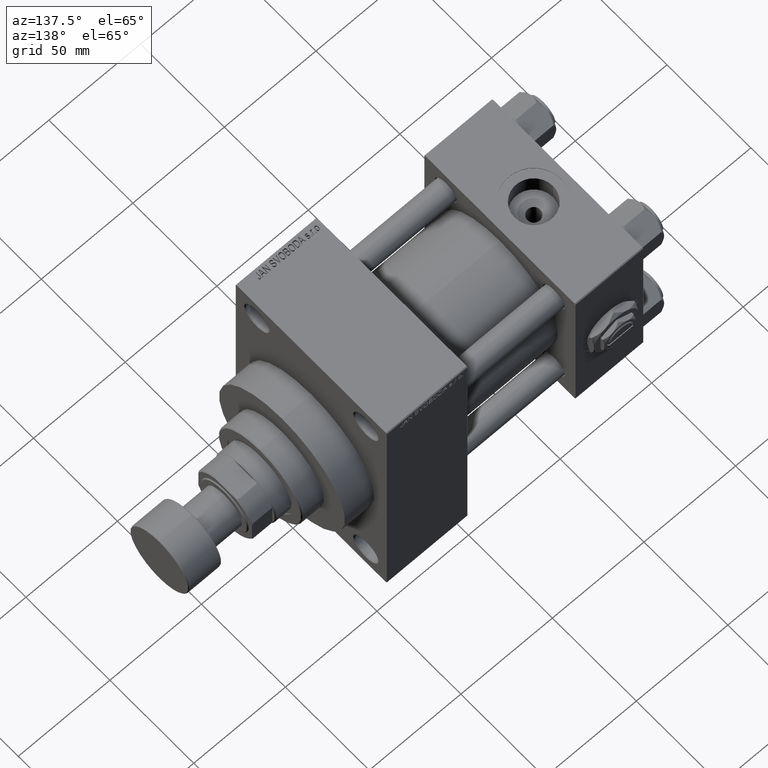
[diagram: clean part render]
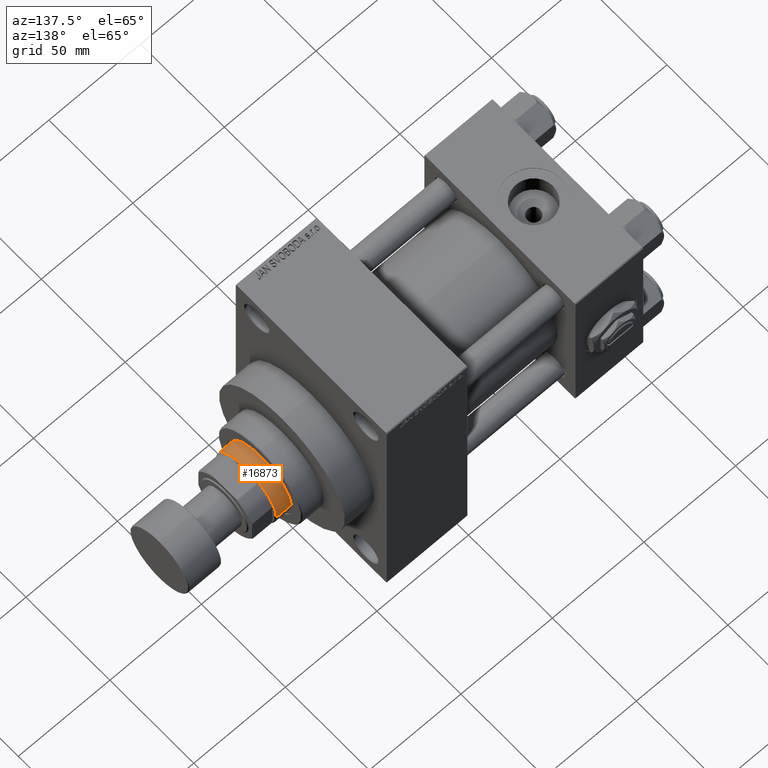
[diagram: same view with one face highlighted and labeled with its STEP entity id]
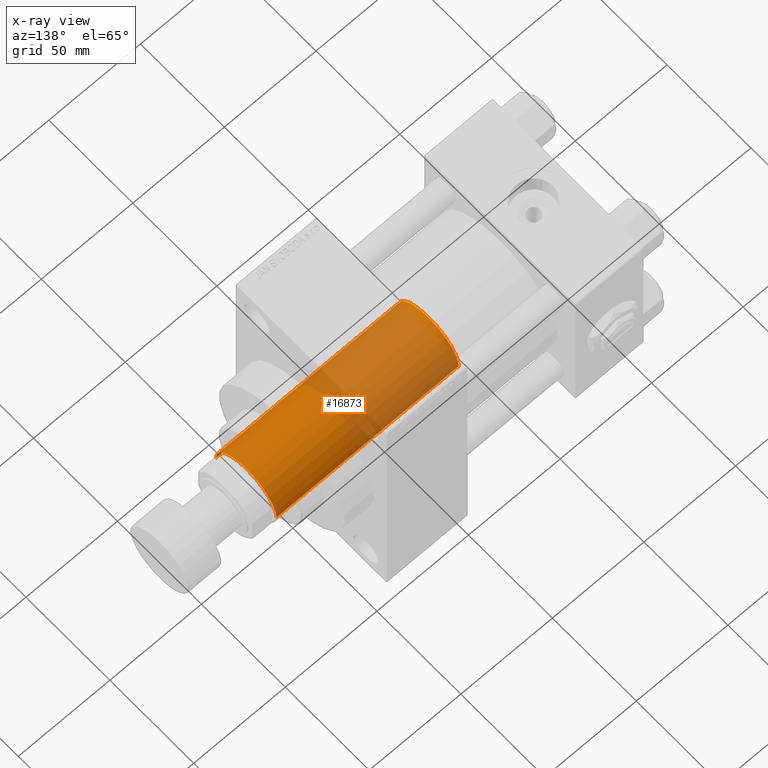
[diagram: x-ray of the same camera — body ghosted, the highlighted face saturated]
A machine part, auxiliary view. The second image highlights one B-rep face of the part: STEP entity #16873.
The next image is the same camera in x-ray: the body ghosted, the highlighted face saturated — about 53% of this face is hidden behind the body in this view.
In plain terms, the highlighted cylindrical surface (partial cylindrical patch) has radius 18 mm, axis along (-1, 0, 0).
Its self-contained STEP definition (entity closure, byte-faithful):
#1433 = VERTEX_POINT ( 'NONE', #26302 ) ;
#1795 = CARTESIAN_POINT ( 'NONE',  ( -18.00000000000000000, 0.000000000000000000, 139.0000000000000000 ) ) ;
#2615 = LINE ( 'NONE', #17861, #42053 ) ;
#2790 = DIRECTION ( 'NONE',  ( -0.000000000000000000, -0.000000000000000000, -1.000000000000000000 ) ) ;
#4993 = AXIS2_PLACEMENT_3D ( 'NONE', #32769, #44514, #10754 ) ;
#5229 = DIRECTION ( 'NONE',  ( 1.000000000000000000, 0.000000000000000000, 0.000000000000000000 ) ) ;
#5540 = EDGE_LOOP ( 'NONE', ( #41454, #17615, #9435, #26238 ) ) ;
#6170 = EDGE_CURVE ( 'NONE', #42307, #1433, #26549, .T. ) ;
#7166 = VECTOR ( 'NONE', #2790, 1000.000000000000000 ) ;
#8364 = CYLINDRICAL_SURFACE ( 'NONE', #48394, 18.00000000000000000 ) ;
#9435 = ORIENTED_EDGE ( 'NONE', *, *, #29085, .T. ) ;
#10754 = DIRECTION ( 'NONE',  ( 1.000000000000000000, 0.000000000000000000, 0.000000000000000000 ) ) ;
#12622 = VERTEX_POINT ( 'NONE', #15129 ) ;
#13480 = CARTESIAN_POINT ( 'NONE',  ( 0.000000000000000000, 0.000000000000000000, 39.00000000000000000 ) ) ;
#15129 = CARTESIAN_POINT ( 'NONE',  ( 18.00000000000000000, 2.204364238465235428E-15, 39.00000000000000000 ) ) ;
#15319 = CARTESIAN_POINT ( 'NONE',  ( -18.00000000000000000, 0.000000000000000000, 39.00000000000000000 ) ) ;
#16096 = FACE_OUTER_BOUND ( 'NONE', #5540, .T. ) ;
#16873 = ADVANCED_FACE ( 'NONE', ( #16096 ), #8364, .T. ) ;
#17615 = ORIENTED_EDGE ( 'NONE', *, *, #6170, .T. ) ;
#17861 = CARTESIAN_POINT ( 'NONE',  ( 18.00000000000000000, 2.204364238465235428E-15, 139.0000000000000000 ) ) ;
#21201 = EDGE_CURVE ( 'NONE', #28978, #12622, #33373, .T. ) ;
#22166 = AXIS2_PLACEMENT_3D ( 'NONE', #13480, #28238, #5229 ) ;
#25248 = CARTESIAN_POINT ( 'NONE',  ( 18.00000000000000000, 2.204364238465235428E-15, 138.5000000000000000 ) ) ;
#25615 = DIRECTION ( 'NONE',  ( -0.000000000000000000, -0.000000000000000000, -1.000000000000000000 ) ) ;
#26238 = ORIENTED_EDGE ( 'NONE', *, *, #21201, .T. ) ;
#26302 = CARTESIAN_POINT ( 'NONE',  ( -18.00000000000000000, 0.000000000000000000, 138.5000000000000000 ) ) ;
#26549 = CIRCLE ( 'NONE', #4993, 18.00000000000000000 ) ;
#28238 = DIRECTION ( 'NONE',  ( 0.000000000000000000, 0.000000000000000000, 1.000000000000000000 ) ) ;
#28347 = CARTESIAN_POINT ( 'NONE',  ( 0.000000000000000000, 0.000000000000000000, 139.0000000000000000 ) ) ;
#28978 = VERTEX_POINT ( 'NONE', #15319 ) ;
#29085 = EDGE_CURVE ( 'NONE', #1433, #28978, #36548, .T. ) ;
#32340 = DIRECTION ( 'NONE',  ( -0.000000000000000000, -0.000000000000000000, -1.000000000000000000 ) ) ;
#32769 = CARTESIAN_POINT ( 'NONE',  ( 0.000000000000000000, 0.000000000000000000, 138.5000000000000000 ) ) ;
#33373 = CIRCLE ( 'NONE', #22166, 18.00000000000000000 ) ;
#36548 = LINE ( 'NONE', #1795, #7166 ) ;
#41454 = ORIENTED_EDGE ( 'NONE', *, *, #42084, .F. ) ;
#42053 = VECTOR ( 'NONE', #25615, 1000.000000000000000 ) ;
#42084 = EDGE_CURVE ( 'NONE', #42307, #12622, #2615, .T. ) ;
#42307 = VERTEX_POINT ( 'NONE', #25248 ) ;
#44514 = DIRECTION ( 'NONE',  ( 0.000000000000000000, 0.000000000000000000, -1.000000000000000000 ) ) ;
#46853 = DIRECTION ( 'NONE',  ( -1.000000000000000000, 0.000000000000000000, 0.000000000000000000 ) ) ;
#48394 = AXIS2_PLACEMENT_3D ( 'NONE', #28347, #32340, #46853 ) ;